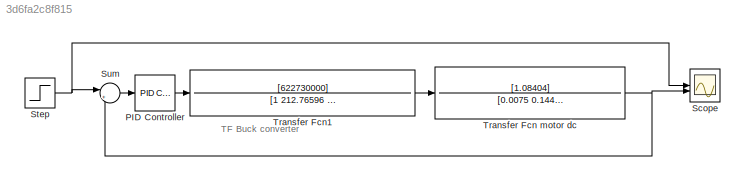
MODEL slx_3d6fa2c8f815
KIND model
CONFIG AbsTol = auto
CONFIG EnableMultiTasking = off
CONFIG FixedStep = auto
CONFIG MaxStep = auto
CONFIG MinStep = auto
CONFIG RelTol = 1e-3
CONFIG SampleTimeConstraint = Unconstrained
CONFIG SolverName = VariableStepAuto
CONFIG StartTime = 0.0
CONFIG StopTime = 10.0
BLOCK [Reference] PID Controller  REF=slpidlib/PID Controller
  LibrarySourceBlock = simulink/Continuous/PID Controller
  SourceBlock = slpidlib/PID Controller
  SourceType = PID 1dof
BLOCK [Scope] Scope
  Floating = off
  NumInputPorts = 2
  ScopeSpecificationString = Simulink.scopes.TimeScopeBlockCfg('CurrentConfiguration', extmgr.ConfigurationSet(extmgr.Configuration('Core','General UI',true),extmgr.Configuration('Core','Source UI',true),extmgr.Configuration('Sources','WiredSimulink',true),extmgr.Configuration('Visuals','Time Domain',true),extmgr.Configuration('Tools','Plot Navigation',true),extmgr.Configuration('Tools','Measurements',true,'Version','2023b'))...<+19ch>
BLOCK [Step] Step
  After = 100
  SampleTime = 0
  Time = 0
BLOCK [Sum] Sum
  Inputs = |+-
BLOCK [TransferFcn] Transfer Fcn motor dc
  Denominator = [0.0075 0.14475 1.18954]
  Numerator = [1.08404]
BLOCK [TransferFcn] Transfer Fcn1
  Denominator = [1 212.76596 51894100]
  Numerator = [622730000]
ANNOTATION (root): TF Buck converter
LINE PID Controller:1 -> Transfer Fcn1:1
NET Step:1 -> Scope:1, Sum:1
LINE Sum:1 -> PID Controller:1
NET Transfer Fcn motor dc:1 -> Scope:2, Sum:2
LINE Transfer Fcn1:1 -> Transfer Fcn motor dc:1
note: NET lines group one-source signal fan-out (src -> all destinations, sorted); 1:1 wires keep LINE
